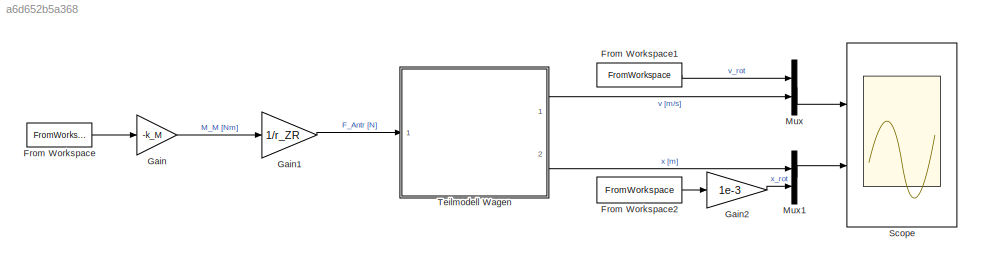
MODEL slx_a6d652b5a368
KIND model
CONFIG AbsTol = auto
CONFIG EnableMultiTasking = off
CONFIG FixedStep = 0.001
CONFIG MaxStep = auto
CONFIG MinStep = auto
CONFIG RelTol = 1e-3
CONFIG SampleTimeConstraint = Unconstrained
CONFIG SolverName = ode3
CONFIG StartTime = 0.0
CONFIG StopTime = Zeit(end)
BLOCK [FromWorkspace] From Workspace
  VariableName = [Zeit i_A]
BLOCK [FromWorkspace] From Workspace1
  VariableName = [Zeit v_rot]
BLOCK [FromWorkspace] From Workspace2
  VariableName = [Zeit x_rot]
BLOCK [Gain] Gain
  Gain = -k_M
BLOCK [Gain] Gain1
  Gain = 1/r_ZR
BLOCK [Gain] Gain2
  Gain = 1e-3
BLOCK [Mux] Mux
  DisplayOption = bar
  Inputs = 2
  Ports = [2, 1]
BLOCK [Mux] Mux1
  DisplayOption = bar
  Inputs = 2
  Ports = [2, 1]
BLOCK [Scope] Scope
  Floating = off
  NumInputPorts = 2
  Ports = [2]
  ScopeSpecificationString = Simulink.scopes.TimeScopeBlockCfg('CurrentConfiguration', extmgr.ConfigurationSet(extmgr.Configuration('Core','General UI',true),extmgr.Configuration('Core','Source UI',true),extmgr.Configuration('Sources','WiredSimulink',true,'DataLoggingVariableName','ScopeData1'),extmgr.Configuration('Visuals','Time Domain',true,'SerializedDisplays',{struct('MinYLimReal','-0.36131','MaxYLimReal','3.25182','YLab...<+1998ch>
BLOCK [SubSystem] Teilmodell Wagen
  Ports = [1, 2]
  ReferencedSubsystem = V4_Modell_Wagen
LINE From Workspace1:1 -> Mux:1
LINE From Workspace2:1 -> Gain2:1
LINE From Workspace:1 -> Gain:1
LINE Gain1:1 -> Teilmodell Wagen:1
LINE Gain2:1 -> Mux1:2
LINE Gain:1 -> Gain1:1
LINE Mux1:1 -> Scope:2
LINE Mux:1 -> Scope:1
LINE Teilmodell Wagen:1 -> Mux:2
LINE Teilmodell Wagen:2 -> Mux1:1
